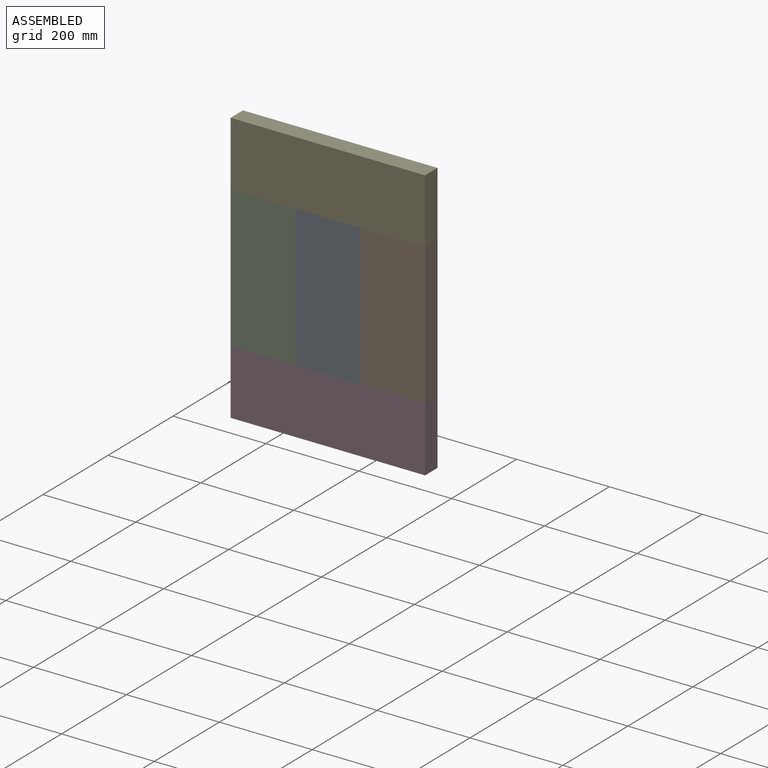
[diagram: assembled view]
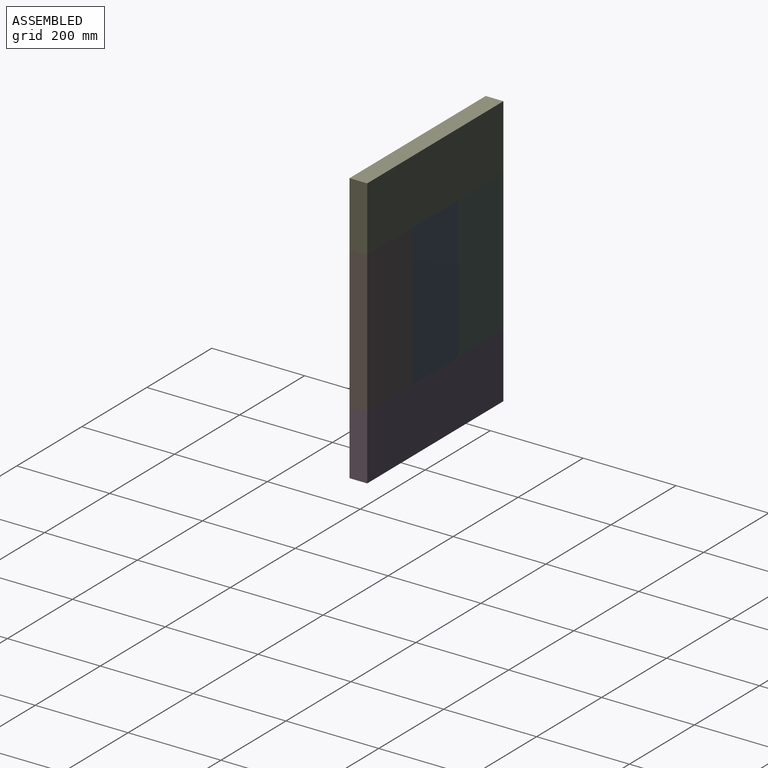
[diagram: assembled view, second angle]
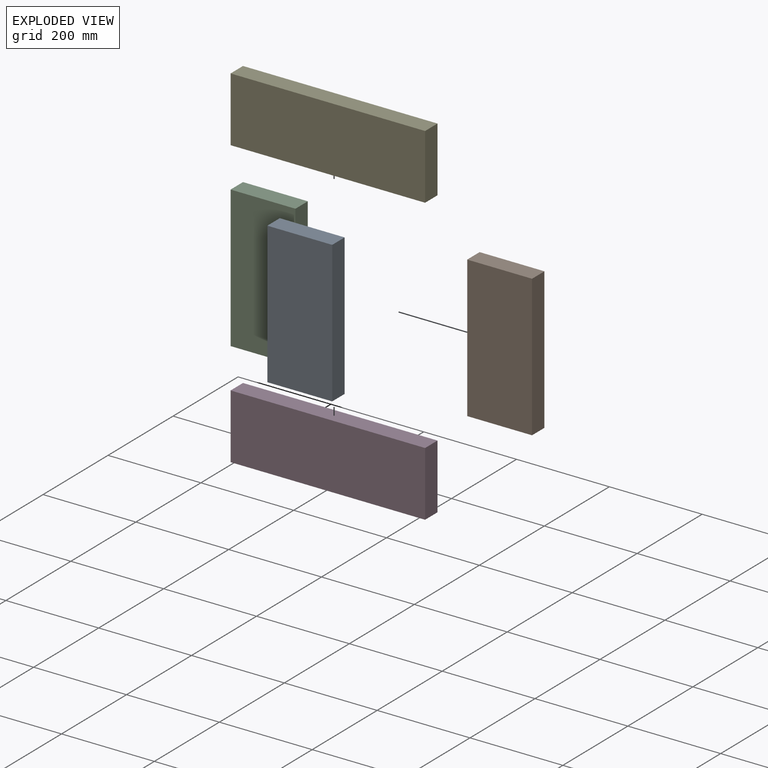
[diagram: exploded view]
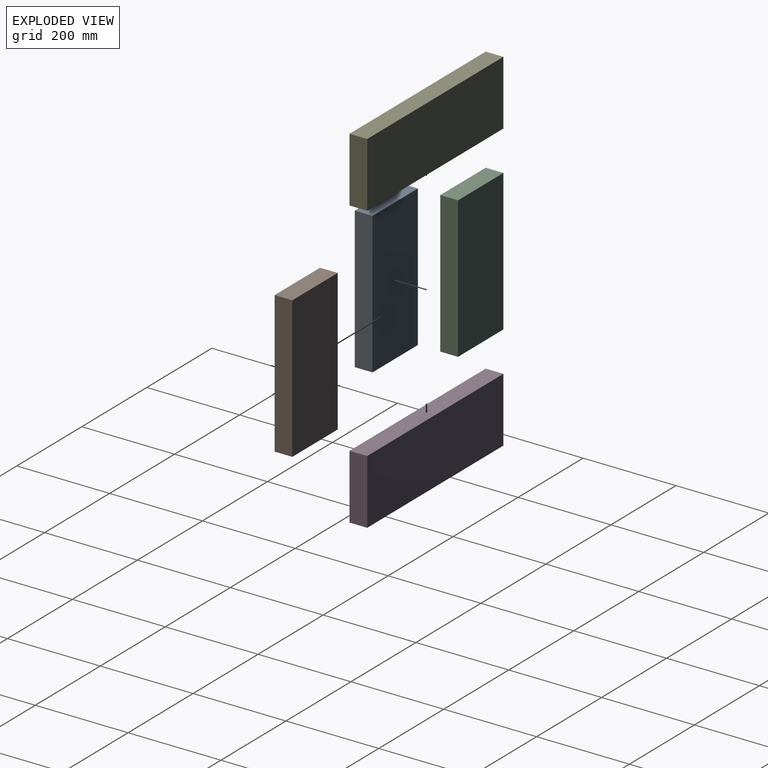
[diagram: exploded view, second angle]
ASSEMBLY  parts=5 mates=12
PART A: 6 faces, bbox 139.7x38.1x304.8 mm
  f0: plane 304.8x38.1mm, normal (-1,0,0), area 11612.9mm2, adj f1,f3,f4,f5
  f1: plane 304.8x139.7mm, normal (0,-1,0), area 42580.6mm2, adj f0,f2,f4,f5
  f2: plane 304.8x38.1mm, normal (1,0,0), area 11612.9mm2, adj f1,f3,f4,f5
  f3: plane 304.8x139.7mm, normal (0,1,0), area 42580.6mm2, adj f0,f2,f4,f5
  f4: plane 139.7x38.1mm, normal (0,0,1), area 5322.6mm2, adj f0,f1,f2,f3
  f5: plane 139.7x38.1mm, normal (0,0,-1), area 5322.6mm2, adj f0,f1,f2,f3
PART B: same geometry as A
PART C: same geometry as A
PART D: 6 faces, bbox 139.7x38.1x419.1 mm
  f0: plane 419.1x38.1mm, normal (-1,0,0), area 15967.7mm2, adj f1,f3,f4,f5
  f1: plane 419.1x139.7mm, normal (0,-1,0), area 58548.3mm2, adj f0,f2,f4,f5
  f2: plane 419.1x38.1mm, normal (1,0,0), area 15967.7mm2, adj f1,f3,f4,f5
  f3: plane 419.1x139.7mm, normal (0,1,0), area 58548.3mm2, adj f0,f2,f4,f5
  f4: plane 139.7x38.1mm, normal (0,0,1), area 5322.6mm2, adj f0,f1,f2,f3
  f5: plane 139.7x38.1mm, normal (0,0,-1), area 5322.6mm2, adj f0,f1,f2,f3
PART E: same geometry as D
PLACE A t=(-29.42,222.03,68.14)mm
PLACE B t=(110.28,222.03,68.14)mm
PLACE C t=(-169.12,222.03,68.14)mm
PLACE D rot(axis=(0,-1,0),90deg) t=(176.75,216.3,-1.97)mm
PLACE E rot(axis=(0.71,0,-0.71),180deg) t=(176.75,183.33,443.06)mm
MATE planar E.f3 <-> B.f1  axis (0,-1,0) through (-32.8,180.76,442.79)mm
MATE planar A.f4 <-> C.f4  axis (0,0,1) through (-32.8,199.81,372.94)mm
MATE planar E.f5 <-> B.f2  axis (1,0,0) through (176.75,199.81,442.79)mm
MATE planar D.f2 <-> B.f5  axis (0,0,1) through (-32.8,199.81,68.14)mm
MATE planar C.f2 <-> A.f0  axis (1,0,0) through (-102.65,199.81,220.54)mm
MATE planar B.f1 <-> A.f1  axis (0,-1,0) through (106.9,180.76,220.54)mm
MATE planar D.f5 <-> B.f2  axis (1,0,0) through (176.75,199.81,-1.71)mm
MATE planar C.f1 <-> A.f1  axis (0,-1,0) through (-172.5,180.76,220.54)mm
MATE planar E.f2 <-> C.f4  axis (0,0,-1) through (-32.8,199.81,372.94)mm
MATE planar D.f1 <-> B.f1  axis (0,-1,0) through (-32.8,180.76,-1.71)mm
MATE planar B.f0 <-> A.f2  axis (-1,0,0) through (37.05,199.81,220.54)mm
MATE planar A.f4 <-> B.f4  axis (0,0,1) through (-32.8,199.81,372.94)mm
